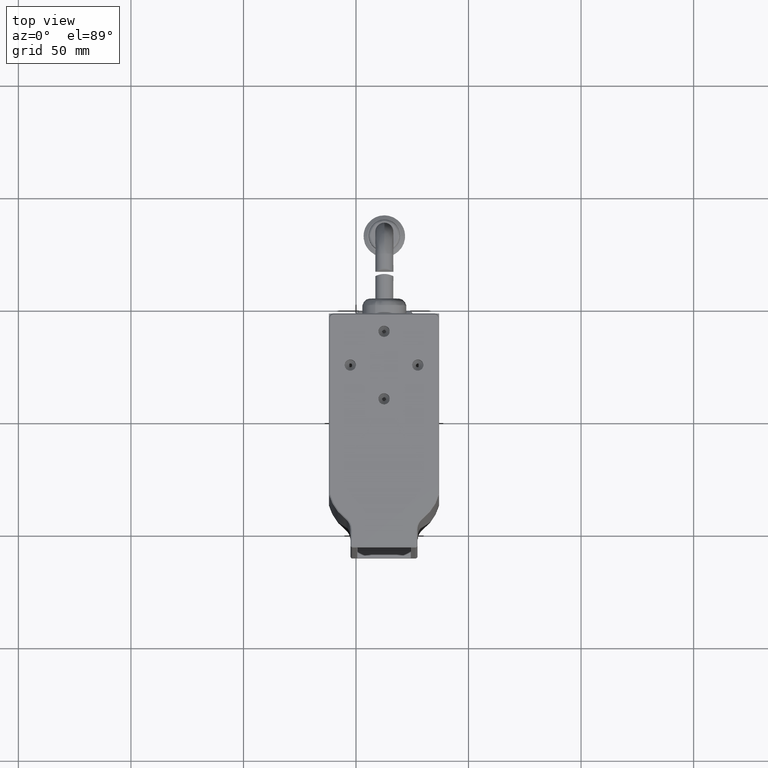
[diagram: clean part render]
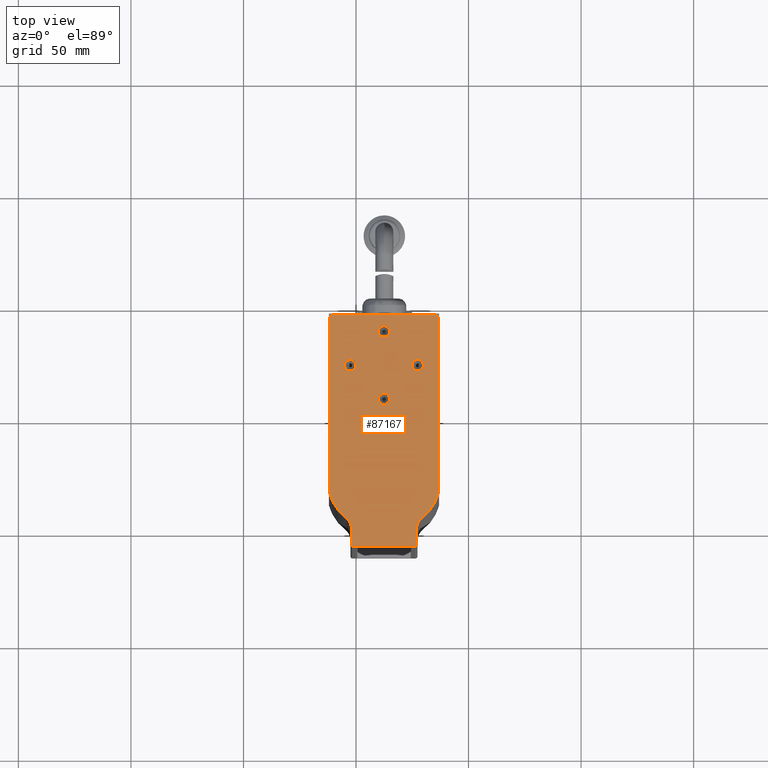
[diagram: same view with one face highlighted and labeled with its STEP entity id]
A machine part, top view. The second image highlights one B-rep face of the part: STEP entity #87167.
In plain terms, the highlighted planar face has unit normal (0, 0, -1).
Its self-contained STEP definition (entity closure, byte-faithful):
#958 = CIRCLE ( 'NONE', #52756, 2.499999999999998700 ) ;
#1565 = ORIENTED_EDGE ( 'NONE', *, *, #75632, .F. ) ;
#2308 = VERTEX_POINT ( 'NONE', #27078 ) ;
#2563 = CARTESIAN_POINT ( 'NONE',  ( -37.56201180637543800, 6.004524203069676600, 142.0000000000000600 ) ) ;
#3633 = CARTESIAN_POINT ( 'NONE',  ( -37.56201180637544500, -59.49547579693031500, 142.0000000000000600 ) ) ;
#4064 = EDGE_CURVE ( 'NONE', #8924, #101274, #53762, .T. ) ;
#5080 = ORIENTED_EDGE ( 'NONE', *, *, #69517, .F. ) ;
#5898 = CARTESIAN_POINT ( 'NONE',  ( -51.96201180637542900, -7.995475796930315400, 142.0000000000000600 ) ) ;
#5954 = VECTOR ( 'NONE', #17456, 1000.000000000000000 ) ;
#6733 = CIRCLE ( 'NONE', #19080, 2.499999999999998700 ) ;
#6984 = DIRECTION ( 'NONE',  ( 0.0000000000000000000, 1.000000000000000000, 0.0000000000000000000 ) ) ;
#7088 = DIRECTION ( 'NONE',  ( 0.0000000000000000000, 0.0000000000000000000, -1.000000000000000000 ) ) ;
#7887 = ORIENTED_EDGE ( 'NONE', *, *, #34125, .F. ) ;
#8330 = EDGE_CURVE ( 'NONE', #28345, #8924, #40268, .T. ) ;
#8924 = VERTEX_POINT ( 'NONE', #86734 ) ;
#12550 = EDGE_CURVE ( 'NONE', #65641, #46675, #95095, .T. ) ;
#12942 = DIRECTION ( 'NONE',  ( 0.0000000000000000000, -1.000000000000000000, 0.0000000000000000000 ) ) ;
#13473 = VERTEX_POINT ( 'NONE', #16168 ) ;
#14135 = LINE ( 'NONE', #5898, #60379 ) ;
#15179 = DIRECTION ( 'NONE',  ( 0.0000000000000000000, 1.000000000000000000, 0.0000000000000000000 ) ) ;
#15669 = CARTESIAN_POINT ( 'NONE',  ( -23.66201180637547100, -59.49547579690188600, 142.0000000000284800 ) ) ;
#16168 = CARTESIAN_POINT ( 'NONE',  ( -51.96201180634700700, -58.99547579693080500, 142.0000000000284800 ) ) ;
#16552 = ORIENTED_EDGE ( 'NONE', *, *, #111498, .F. ) ;
#17456 = DIRECTION ( 'NONE',  ( 0.0000000000000000000, 1.000000000000000000, 0.0000000000000000000 ) ) ;
#18571 = CARTESIAN_POINT ( 'NONE',  ( -37.56201180637543800, 3.504524203069677500, 142.0000000000000600 ) ) ;
#19080 = AXIS2_PLACEMENT_3D ( 'NONE', #2563, #62090, #12942 ) ;
#22364 = VERTEX_POINT ( 'NONE', #57984 ) ;
#23630 = ORIENTED_EDGE ( 'NONE', *, *, #4064, .F. ) ;
#24020 = DIRECTION ( 'NONE',  ( 0.0000000000000000000, -1.000000000000000000, 0.0000000000000000000 ) ) ;
#24079 = DIRECTION ( 'NONE',  ( -0.0000000000000000000, -0.0000000000000000000, 1.000000000000000000 ) ) ;
#25338 = DIRECTION ( 'NONE',  ( 0.0000000000000000000, 0.0000000000000000000, 1.000000000000000000 ) ) ;
#25903 = EDGE_CURVE ( 'NONE', #101274, #22364, #64870, .T. ) ;
#26199 = DIRECTION ( 'NONE',  ( 0.0000000000000000000, 0.0000000000000000000, -1.000000000000000000 ) ) ;
#26259 = VECTOR ( 'NONE', #80907, 1000.000000000000000 ) ;
#27078 = CARTESIAN_POINT ( 'NONE',  ( -22.56201180637544100, 23.50452420306967500, 142.0000000000000600 ) ) ;
#28168 = EDGE_LOOP ( 'NONE', ( #102478, #71650 ) ) ;
#28230 = CARTESIAN_POINT ( 'NONE',  ( -61.56201180637545200, -36.23801724235212200, 142.0000000000000600 ) ) ;
#28345 = VERTEX_POINT ( 'NONE', #111770 ) ;
#29322 = VERTEX_POINT ( 'NONE', #15669 ) ;
#30482 = EDGE_LOOP ( 'NONE', ( #41142, #96244 ) ) ;
#30713 = EDGE_CURVE ( 'NONE', #120930, #113783, #116449, .T. ) ;
#31560 = EDGE_CURVE ( 'NONE', #99991, #13473, #112792, .T. ) ;
#32275 = VECTOR ( 'NONE', #97590, 1000.000000000000000 ) ;
#32578 = EDGE_LOOP ( 'NONE', ( #75885, #62381 ) ) ;
#33604 = ORIENTED_EDGE ( 'NONE', *, *, #108420, .F. ) ;
#33670 = CARTESIAN_POINT ( 'NONE',  ( -60.06201180637548000, 43.50452420309240900, 141.9999999999773200 ) ) ;
#34125 = EDGE_CURVE ( 'NONE', #13473, #75643, #14135, .T. ) ;
#34595 = CARTESIAN_POINT ( 'NONE',  ( -42.60050320496788600, -31.14253440928075600, 142.0000000000000600 ) ) ;
#35279 = DIRECTION ( 'NONE',  ( 0.0000000000000000000, -1.000000000000000000, 0.0000000000000000000 ) ) ;
#35911 = DIRECTION ( 'NONE',  ( 0.0000000000000000000, 0.0000000000000000000, -1.000000000000000000 ) ) ;
#37490 = VERTEX_POINT ( 'NONE', #28230 ) ;
#37784 = CIRCLE ( 'NONE', #39486, 1.500000000021373100 ) ;
#38400 = CARTESIAN_POINT ( 'NONE',  ( -37.56201180637544500, 36.00452420306967800, 142.0000000000000600 ) ) ;
#38806 = EDGE_LOOP ( 'NONE', ( #50795, #5080 ) ) ;
#39274 = VERTEX_POINT ( 'NONE', #33670 ) ;
#39486 = AXIS2_PLACEMENT_3D ( 'NONE', #126262, #7088, #86378 ) ;
#40135 = CIRCLE ( 'NONE', #79853, 6.499999999998923500 ) ;
#40268 = CIRCLE ( 'NONE', #114015, 19.63422404230373500 ) ;
#41142 = ORIENTED_EDGE ( 'NONE', *, *, #12550, .F. ) ;
#41308 = CARTESIAN_POINT ( 'NONE',  ( -23.16201180637546700, -7.995475796930315400, 142.0000000000000600 ) ) ;
#42817 = DIRECTION ( 'NONE',  ( 0.0000000000000000000, 1.000000000000000000, 0.0000000000000000000 ) ) ;
#44514 = DIRECTION ( 'NONE',  ( 0.0000000000000000000, -1.000000000000000000, 0.0000000000000000000 ) ) ;
#44828 = CIRCLE ( 'NONE', #114497, 2.499999999999998700 ) ;
#46675 = VERTEX_POINT ( 'NONE', #101748 ) ;
#47555 = DIRECTION ( 'NONE',  ( -0.0000000000000000000, -0.0000000000000000000, 1.000000000000000000 ) ) ;
#49536 = DIRECTION ( 'NONE',  ( -0.0000000000000000000, -0.0000000000000000000, 1.000000000000000000 ) ) ;
#50795 = ORIENTED_EDGE ( 'NONE', *, *, #59766, .F. ) ;
#51383 = CARTESIAN_POINT ( 'NONE',  ( -15.06201180637544600, 42.00452420306967100, 142.0000000000114300 ) ) ;
#52011 = VERTEX_POINT ( 'NONE', #91427 ) ;
#52260 = CARTESIAN_POINT ( 'NONE',  ( -37.56201180637544500, -7.995475796930315400, 142.0000000000000600 ) ) ;
#52690 = AXIS2_PLACEMENT_3D ( 'NONE', #34595, #84543, #15179 ) ;
#52756 = AXIS2_PLACEMENT_3D ( 'NONE', #113478, #74037, #55130 ) ;
#53400 = AXIS2_PLACEMENT_3D ( 'NONE', #38400, #49536, #59035 ) ;
#53762 = CIRCLE ( 'NONE', #91553, 6.500000000024493300 ) ;
#55062 = CIRCLE ( 'NONE', #120920, 2.499999999999998700 ) ;
#55130 = DIRECTION ( 'NONE',  ( 0.0000000000000000000, -1.000000000000000000, 0.0000000000000000000 ) ) ;
#55345 = LINE ( 'NONE', #116243, #5954 ) ;
#56343 = ORIENTED_EDGE ( 'NONE', *, *, #80119, .F. ) ;
#56757 = DIRECTION ( 'NONE',  ( 0.0000000000000000000, 1.000000000000000000, 0.0000000000000000000 ) ) ;
#57168 = VECTOR ( 'NONE', #61452, 1000.000000000000000 ) ;
#57951 = ORIENTED_EDGE ( 'NONE', *, *, #25903, .F. ) ;
#57984 = CARTESIAN_POINT ( 'NONE',  ( -23.16201180632453200, -58.99547579693030700, 142.0000000000569000 ) ) ;
#59035 = DIRECTION ( 'NONE',  ( 0.0000000000000000000, -1.000000000000000000, 0.0000000000000000000 ) ) ;
#59475 = FACE_BOUND ( 'NONE', #30482, .T. ) ;
#59766 = EDGE_CURVE ( 'NONE', #78151, #2308, #44828, .T. ) ;
#60379 = VECTOR ( 'NONE', #56757, 1000.000000000000000 ) ;
#60399 = LINE ( 'NONE', #88339, #71095 ) ;
#60764 = CIRCLE ( 'NONE', #77829, 2.499999999999995100 ) ;
#61418 = VERTEX_POINT ( 'NONE', #94686 ) ;
#61452 = DIRECTION ( 'NONE',  ( -1.000000000000000000, -0.0000000000000000000, -0.0000000000000000000 ) ) ;
#61510 = LINE ( 'NONE', #76009, #32275 ) ;
#61756 = ORIENTED_EDGE ( 'NONE', *, *, #107666, .F. ) ;
#62090 = DIRECTION ( 'NONE',  ( -0.0000000000000000000, -0.0000000000000000000, 1.000000000000000000 ) ) ;
#62306 = EDGE_CURVE ( 'NONE', #113783, #120930, #958, .T. ) ;
#62381 = ORIENTED_EDGE ( 'NONE', *, *, #30713, .F. ) ;
#62599 = PLANE ( 'NONE',  #85552 ) ;
#62682 = FACE_OUTER_BOUND ( 'NONE', #77461, .T. ) ;
#62912 = CARTESIAN_POINT ( 'NONE',  ( -61.56201180642899100, 42.00452420306967800, 141.9999999999915300 ) ) ;
#63285 = CIRCLE ( 'NONE', #52690, 19.63422404230372800 ) ;
#63972 = DIRECTION ( 'NONE',  ( -0.0000000000000000000, -0.0000000000000000000, 1.000000000000000000 ) ) ;
#64870 = LINE ( 'NONE', #41308, #26259 ) ;
#65343 = EDGE_CURVE ( 'NONE', #61418, #37490, #63285, .T. ) ;
#65641 = VERTEX_POINT ( 'NONE', #99165 ) ;
#66254 = CARTESIAN_POINT ( 'NONE',  ( -58.46201180637545700, -51.91295114031439100, 142.0000000000313200 ) ) ;
#66674 = DIRECTION ( 'NONE',  ( 0.0000000000000000000, 1.000000000000000000, 0.0000000000000000000 ) ) ;
#68547 = DIRECTION ( 'NONE',  ( -0.0000000000000000000, -1.000000000000000000, -0.0000000000000000000 ) ) ;
#69517 = EDGE_CURVE ( 'NONE', #2308, #78151, #99739, .T. ) ;
#70534 = AXIS2_PLACEMENT_3D ( 'NONE', #82911, #63972, #103323 ) ;
#70671 = ORIENTED_EDGE ( 'NONE', *, *, #123799, .F. ) ;
#70921 = ORIENTED_EDGE ( 'NONE', *, *, #125113, .F. ) ;
#71095 = VECTOR ( 'NONE', #68547, 1000.000000000000000 ) ;
#71182 = DIRECTION ( 'NONE',  ( 0.0000000000000000000, 0.0000000000000000000, -1.000000000000000000 ) ) ;
#71361 = AXIS2_PLACEMENT_3D ( 'NONE', #82418, #35911, #120018 ) ;
#71650 = ORIENTED_EDGE ( 'NONE', *, *, #110147, .F. ) ;
#72923 = CIRCLE ( 'NONE', #109674, 1.499999999964529700 ) ;
#73098 = DIRECTION ( 'NONE',  ( -0.0000000000000000000, -0.0000000000000000000, 1.000000000000000000 ) ) ;
#73099 = ORIENTED_EDGE ( 'NONE', *, *, #65343, .F. ) ;
#74037 = DIRECTION ( 'NONE',  ( -0.0000000000000000000, -0.0000000000000000000, 1.000000000000000000 ) ) ;
#74449 = DIRECTION ( 'NONE',  ( 0.0000000000000000000, -1.000000000000000000, 0.0000000000000000000 ) ) ;
#74830 = CARTESIAN_POINT ( 'NONE',  ( -32.52352040778300300, -31.14253440928075600, 142.0000000000000600 ) ) ;
#75632 = EDGE_CURVE ( 'NONE', #95190, #39274, #37784, .T. ) ;
#75643 = VERTEX_POINT ( 'NONE', #106775 ) ;
#75885 = ORIENTED_EDGE ( 'NONE', *, *, #62306, .F. ) ;
#76009 = CARTESIAN_POINT ( 'NONE',  ( -37.56201180637544500, 43.50452420306967800, 142.0000000000000600 ) ) ;
#76640 = ORIENTED_EDGE ( 'NONE', *, *, #80103, .F. ) ;
#76898 = AXIS2_PLACEMENT_3D ( 'NONE', #105415, #125305, #6984 ) ;
#77461 = EDGE_LOOP ( 'NONE', ( #78045, #70671, #61756, #76640, #1565, #56343, #73099, #33604, #7887, #106572, #16552, #70921, #57951, #23630 ) ) ;
#77669 = CARTESIAN_POINT ( 'NONE',  ( -52.56201180637544500, 18.50452420306968200, 142.0000000000000600 ) ) ;
#77829 = AXIS2_PLACEMENT_3D ( 'NONE', #122975, #24079, #74449 ) ;
#78045 = ORIENTED_EDGE ( 'NONE', *, *, #8330, .F. ) ;
#78151 = VERTEX_POINT ( 'NONE', #83108 ) ;
#79853 = AXIS2_PLACEMENT_3D ( 'NONE', #66254, #25338, #35279 ) ;
#80103 = EDGE_CURVE ( 'NONE', #39274, #113044, #61510, .T. ) ;
#80119 = EDGE_CURVE ( 'NONE', #37490, #95190, #55345, .T. ) ;
#80907 = DIRECTION ( 'NONE',  ( -0.0000000000000000000, -1.000000000000000000, -0.0000000000000000000 ) ) ;
#81238 = CARTESIAN_POINT ( 'NONE',  ( -37.56201180637543800, 6.004524203069676600, 142.0000000000000600 ) ) ;
#81331 = CARTESIAN_POINT ( 'NONE',  ( -51.46201180637542900, -59.49547579691007100, 142.0000000000569000 ) ) ;
#81789 = CARTESIAN_POINT ( 'NONE',  ( -22.56201180637544100, 21.00452420306967500, 142.0000000000000600 ) ) ;
#81943 = DIRECTION ( 'NONE',  ( 0.0000000000000000000, 1.000000000000000000, 0.0000000000000000000 ) ) ;
#82418 = CARTESIAN_POINT ( 'NONE',  ( -51.46201180637542900, -58.99547579693013700, 142.0000000000569000 ) ) ;
#82911 = CARTESIAN_POINT ( 'NONE',  ( -22.56201180637544100, 21.00452420306967500, 142.0000000000000600 ) ) ;
#83108 = CARTESIAN_POINT ( 'NONE',  ( -22.56201180637544100, 18.50452420306967800, 142.0000000000000600 ) ) ;
#83975 = DIRECTION ( 'NONE',  ( 0.0000000000000000000, -1.000000000000000000, 0.0000000000000000000 ) ) ;
#84314 = CARTESIAN_POINT ( 'NONE',  ( -52.56201180637544500, 23.50452420306967800, 142.0000000000000600 ) ) ;
#84543 = DIRECTION ( 'NONE',  ( 0.0000000000000000000, 0.0000000000000000000, -1.000000000000000000 ) ) ;
#84889 = EDGE_CURVE ( 'NONE', #89139, #114149, #55062, .T. ) ;
#85552 = AXIS2_PLACEMENT_3D ( 'NONE', #52260, #71182, #42817 ) ;
#86378 = DIRECTION ( 'NONE',  ( 0.0000000000000000000, 1.000000000000000000, 0.0000000000000000000 ) ) ;
#86734 = CARTESIAN_POINT ( 'NONE',  ( -20.60702298184853700, -46.74701590786730100, 142.0000000000000600 ) ) ;
#87167 = ADVANCED_FACE ( 'NONE', ( #62682, #88846, #112194, #59475, #102748 ), #62599, .F. ) ;
#88339 = CARTESIAN_POINT ( 'NONE',  ( -13.56201180637544800, -7.995475796930315400, 142.0000000000000600 ) ) ;
#88846 = FACE_BOUND ( 'NONE', #32578, .T. ) ;
#89139 = VERTEX_POINT ( 'NONE', #18571 ) ;
#89302 = CARTESIAN_POINT ( 'NONE',  ( -15.06201180637544600, 43.50452420304944200, 142.0000000000199500 ) ) ;
#90336 = EDGE_CURVE ( 'NONE', #46675, #65641, #60764, .T. ) ;
#91427 = CARTESIAN_POINT ( 'NONE',  ( -13.56201180638113800, 42.00452420306967100, 142.0000000000057400 ) ) ;
#91553 = AXIS2_PLACEMENT_3D ( 'NONE', #104804, #105237, #83975 ) ;
#94686 = CARTESIAN_POINT ( 'NONE',  ( -54.51700063089501200, -46.74701590789633300, 142.0000000000156600 ) ) ;
#95095 = CIRCLE ( 'NONE', #53400, 2.499999999999995100 ) ;
#95190 = VERTEX_POINT ( 'NONE', #62912 ) ;
#96244 = ORIENTED_EDGE ( 'NONE', *, *, #90336, .F. ) ;
#97590 = DIRECTION ( 'NONE',  ( 1.000000000000000000, 0.0000000000000000000, 0.0000000000000000000 ) ) ;
#99165 = CARTESIAN_POINT ( 'NONE',  ( -37.56201180637544500, 33.50452420306967800, 142.0000000000000600 ) ) ;
#99739 = CIRCLE ( 'NONE', #70534, 2.499999999999998700 ) ;
#99991 = VERTEX_POINT ( 'NONE', #81331 ) ;
#100034 = AXIS2_PLACEMENT_3D ( 'NONE', #103248, #121860, #44514 ) ;
#101274 = VERTEX_POINT ( 'NONE', #124347 ) ;
#101748 = CARTESIAN_POINT ( 'NONE',  ( -37.56201180637544500, 38.50452420306967100, 142.0000000000000600 ) ) ;
#101922 = CIRCLE ( 'NONE', #76898, 0.5000000000571214200 ) ;
#102478 = ORIENTED_EDGE ( 'NONE', *, *, #84889, .F. ) ;
#102748 = FACE_BOUND ( 'NONE', #28168, .T. ) ;
#103248 = CARTESIAN_POINT ( 'NONE',  ( -52.56201180637544500, 21.00452420306967800, 142.0000000000000600 ) ) ;
#103323 = DIRECTION ( 'NONE',  ( 0.0000000000000000000, -1.000000000000000000, 0.0000000000000000000 ) ) ;
#103503 = DIRECTION ( 'NONE',  ( 0.0000000000000000000, -1.000000000000000000, 0.0000000000000000000 ) ) ;
#103666 = CARTESIAN_POINT ( 'NONE',  ( -37.56201180637543800, 8.504524203069674800, 142.0000000000000600 ) ) ;
#104804 = CARTESIAN_POINT ( 'NONE',  ( -16.66201180637543200, -51.91295114031439100, 142.0000000000000600 ) ) ;
#105237 = DIRECTION ( 'NONE',  ( 0.0000000000000000000, 0.0000000000000000000, 1.000000000000000000 ) ) ;
#105415 = CARTESIAN_POINT ( 'NONE',  ( -23.66201180637546400, -58.99547579693013700, 142.0000000000569000 ) ) ;
#106572 = ORIENTED_EDGE ( 'NONE', *, *, #31560, .F. ) ;
#106775 = CARTESIAN_POINT ( 'NONE',  ( -51.96201180638706100, -51.91295114031437700, 142.0000000000014500 ) ) ;
#107666 = EDGE_CURVE ( 'NONE', #113044, #52011, #72923, .T. ) ;
#108420 = EDGE_CURVE ( 'NONE', #75643, #61418, #40135, .T. ) ;
#109674 = AXIS2_PLACEMENT_3D ( 'NONE', #51383, #120538, #81943 ) ;
#109766 = LINE ( 'NONE', #3633, #57168 ) ;
#110147 = EDGE_CURVE ( 'NONE', #114149, #89139, #6733, .T. ) ;
#111498 = EDGE_CURVE ( 'NONE', #29322, #99991, #109766, .T. ) ;
#111770 = CARTESIAN_POINT ( 'NONE',  ( -13.56201180637544800, -36.23801724235217100, 142.0000000000000600 ) ) ;
#112194 = FACE_BOUND ( 'NONE', #38806, .T. ) ;
#112792 = CIRCLE ( 'NONE', #71361, 0.5000000000002780000 ) ;
#113044 = VERTEX_POINT ( 'NONE', #89302 ) ;
#113478 = CARTESIAN_POINT ( 'NONE',  ( -52.56201180637544500, 21.00452420306967800, 142.0000000000000600 ) ) ;
#113783 = VERTEX_POINT ( 'NONE', #77669 ) ;
#114015 = AXIS2_PLACEMENT_3D ( 'NONE', #74830, #26199, #66674 ) ;
#114149 = VERTEX_POINT ( 'NONE', #103666 ) ;
#114497 = AXIS2_PLACEMENT_3D ( 'NONE', #81789, #73098, #24020 ) ;
#116243 = CARTESIAN_POINT ( 'NONE',  ( -61.56201180637545200, -7.995475796930315400, 142.0000000000000600 ) ) ;
#116449 = CIRCLE ( 'NONE', #100034, 2.499999999999998700 ) ;
#120018 = DIRECTION ( 'NONE',  ( 0.0000000000000000000, 1.000000000000000000, 0.0000000000000000000 ) ) ;
#120538 = DIRECTION ( 'NONE',  ( 0.0000000000000000000, 0.0000000000000000000, -1.000000000000000000 ) ) ;
#120920 = AXIS2_PLACEMENT_3D ( 'NONE', #81238, #47555, #103503 ) ;
#120930 = VERTEX_POINT ( 'NONE', #84314 ) ;
#121860 = DIRECTION ( 'NONE',  ( -0.0000000000000000000, -0.0000000000000000000, 1.000000000000000000 ) ) ;
#122975 = CARTESIAN_POINT ( 'NONE',  ( -37.56201180637544500, 36.00452420306967800, 142.0000000000000600 ) ) ;
#123799 = EDGE_CURVE ( 'NONE', #52011, #28345, #60399, .T. ) ;
#124347 = CARTESIAN_POINT ( 'NONE',  ( -23.16201180638386200, -51.91295114031438400, 142.0000000000000600 ) ) ;
#125113 = EDGE_CURVE ( 'NONE', #22364, #29322, #101922, .T. ) ;
#125305 = DIRECTION ( 'NONE',  ( 0.0000000000000000000, 0.0000000000000000000, -1.000000000000000000 ) ) ;
#126262 = CARTESIAN_POINT ( 'NONE',  ( -60.06201180637545200, 42.00452420306967100, 141.9999999999545800 ) ) ;